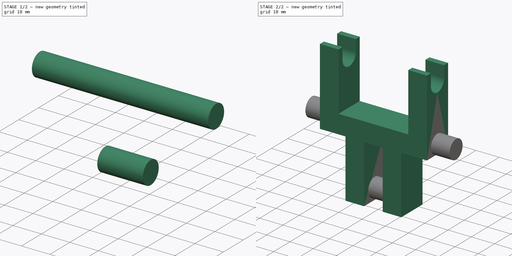
[diagram: build sequence overview — one tinted view per stage of 2, left to right]
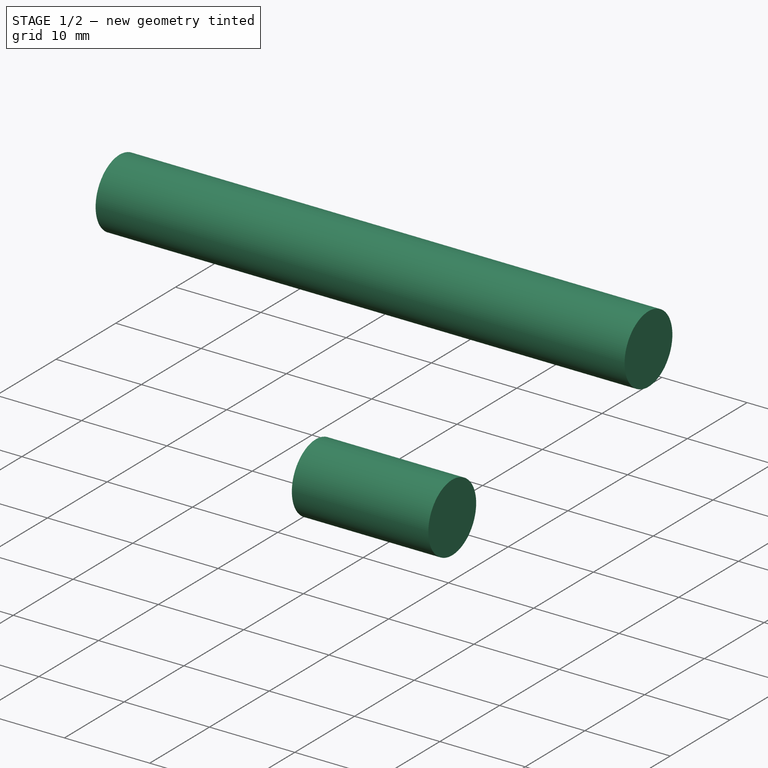
[diagram: stage 1 of 2 — iso view after this stage's code; geometry added in this stage tinted green]
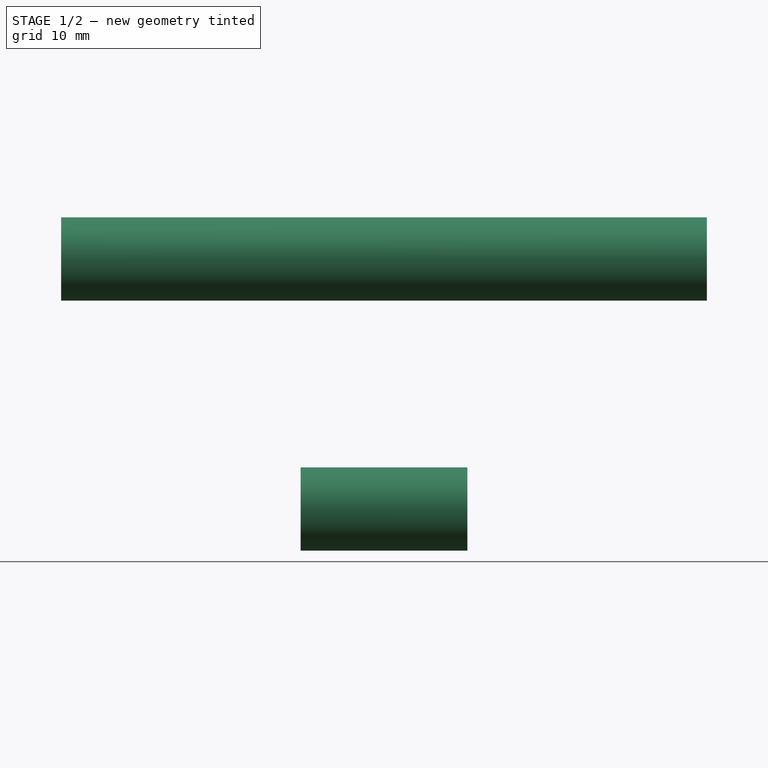
[diagram: stage 1 of 2 — front view after this stage's code; geometry added in this stage tinted green]
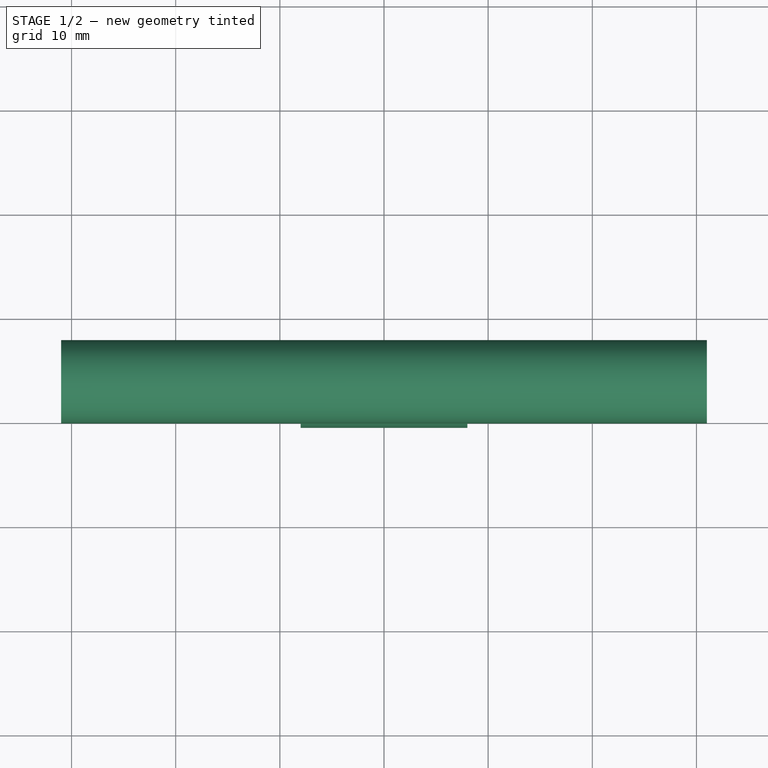
[diagram: stage 1 of 2 — top view after this stage's code; geometry added in this stage tinted green]
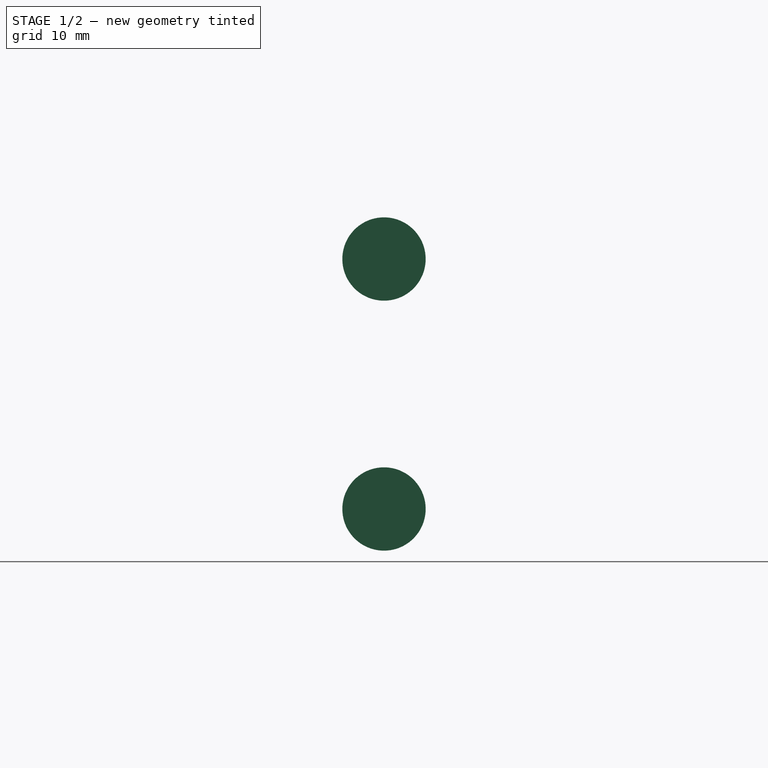
[diagram: stage 1 of 2 — right view after this stage's code; geometry added in this stage tinted green]
FCSTD DOCUMENT  (FreeCAD 0.15R4671 (Git))
Label: Push Lever
License: All rights reserved
LicenseURL: http://en.wikipedia.org/wiki/All_rights_reserved
objects: Sketcher::SketchObject×2, Part::Cylinder×2, PartDesign::Pad×1, PartDesign::Pocket×1
note: 8 computed .brp shape members not serialized (recipe doc carries the construction recipe); baked Part::Feature solids carry a one-line shape summary decoded from their .brp

FEATURE [Part::Cylinder] Cylinder
  Angle = 360
  Height = 16
  Placement = pos=(-8,-6.5,-24) rot=(0,1,0;1.5708rad)
  Radius = 4
FEATURE [Part::Cylinder] Cylinder001
  Angle = 360
  Height = 62
  Placement = pos=(-31,-6.5,0) rot=(0,1,0;1.5708rad)
  Radius = 4
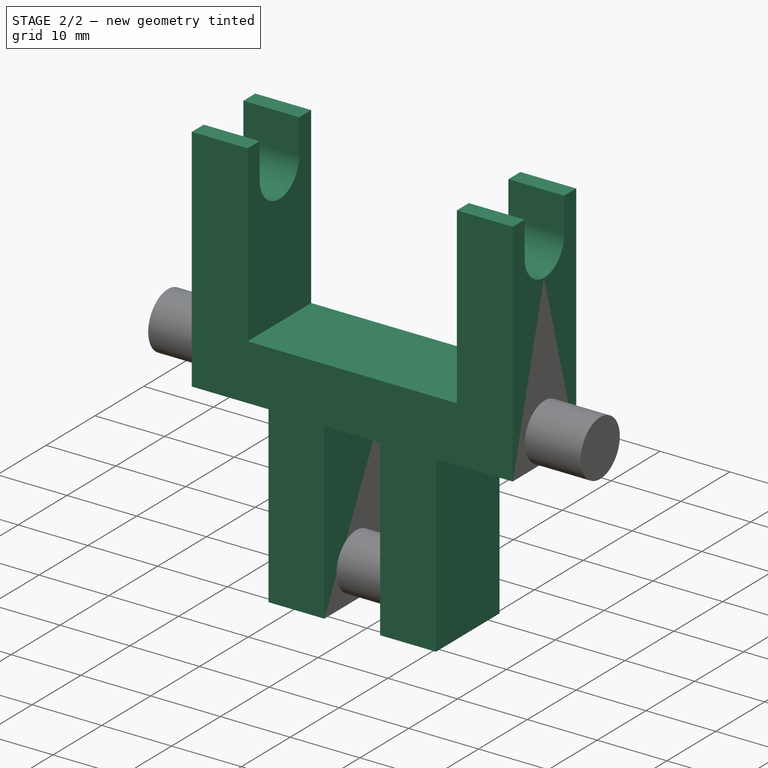
[diagram: stage 2 of 2 — iso view after this stage's code; geometry added in this stage tinted green]
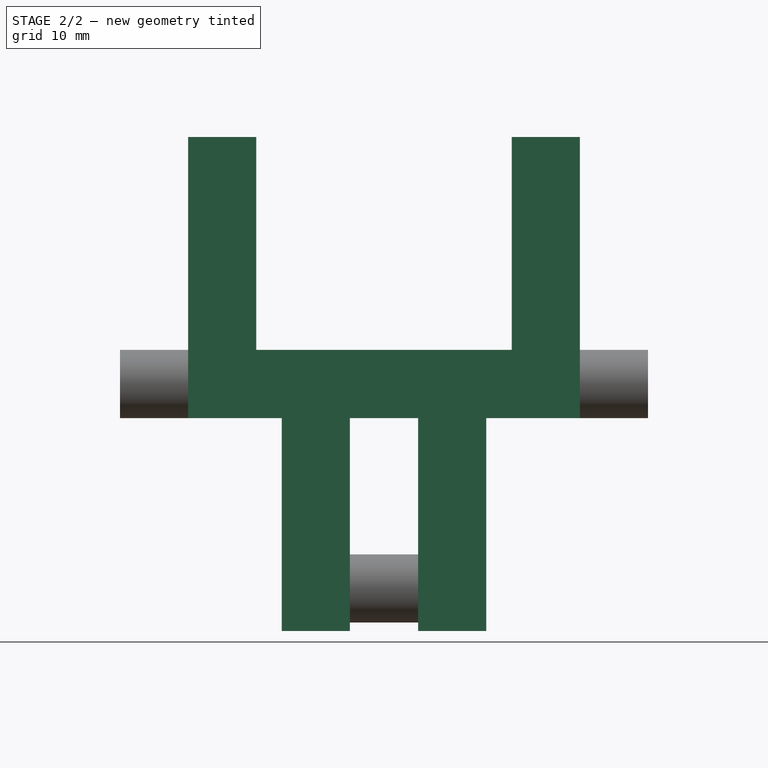
[diagram: stage 2 of 2 — front view after this stage's code; geometry added in this stage tinted green]
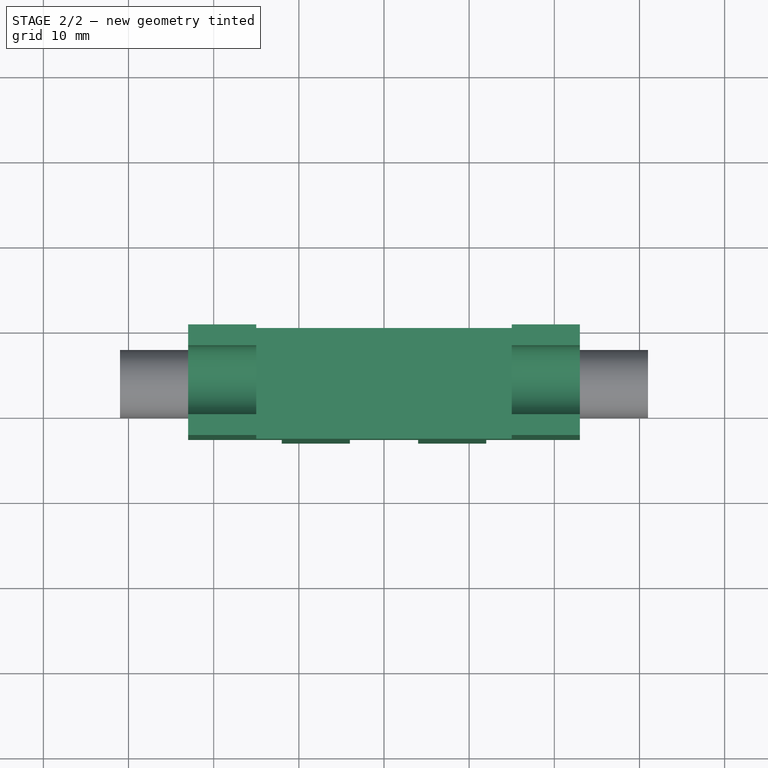
[diagram: stage 2 of 2 — top view after this stage's code; geometry added in this stage tinted green]
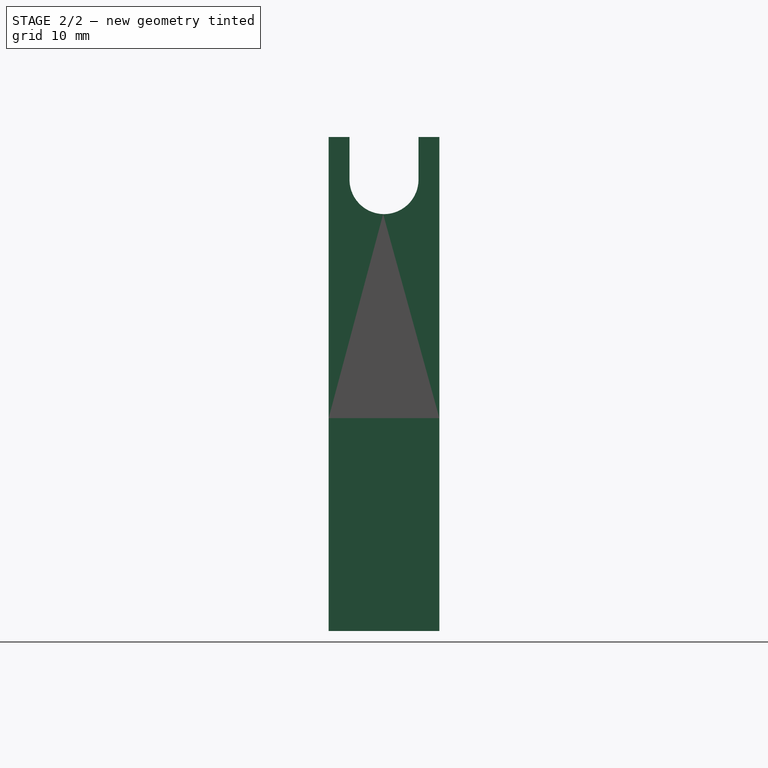
[diagram: stage 2 of 2 — right view after this stage's code; geometry added in this stage tinted green]
FEATURE [Sketcher::SketchObject] Sketch
  Placement = pos=(0,0,0) rot=(1,0,0;1.5708rad)
  sketch-geometry (18):
    g0: LineSegment StartX=-15 StartY=29 StartZ=0 EndX=-15 EndY=4 EndZ=0
    g1: LineSegment StartX=-15 StartY=4 StartZ=0 EndX=15 EndY=4 EndZ=0
    g2: LineSegment StartX=15 StartY=4 StartZ=0 EndX=15 EndY=29 EndZ=0
    g3: LineSegment StartX=15 StartY=29 StartZ=0 EndX=23 EndY=29 EndZ=0
    g4: LineSegment StartX=23 StartY=29 StartZ=0 EndX=23 EndY=-4 EndZ=0
    g5: LineSegment StartX=23 StartY=-4 StartZ=0 EndX=12 EndY=-4 EndZ=0
    g6: LineSegment StartX=12 StartY=-4 StartZ=0 EndX=12 EndY=-29 EndZ=0
    g7: LineSegment StartX=-12 StartY=-29 StartZ=0 EndX=-12 EndY=-4 EndZ=0
    g8: LineSegment StartX=-12 StartY=-4 StartZ=0 EndX=-23 EndY=-4 EndZ=0
    g9: LineSegment StartX=-23 StartY=-4 StartZ=0 EndX=-23 EndY=29 EndZ=0
    g10: LineSegment StartX=-23 StartY=29 StartZ=0 EndX=-15 EndY=29 EndZ=0
    g11: LineSegment StartX=-12 StartY=-29 StartZ=0 EndX=-4 EndY=-29 EndZ=0
    g12: LineSegment StartX=-4 StartY=-29 StartZ=0 EndX=-4 EndY=-4 EndZ=0
    g13: LineSegment StartX=-4 StartY=-4 StartZ=0 EndX=4 EndY=-4 EndZ=0
    g14: LineSegment StartX=4 StartY=-4 StartZ=0 EndX=4 EndY=-29 EndZ=0
    g15: LineSegment StartX=4 StartY=-29 StartZ=0 EndX=12 EndY=-29 EndZ=0
    g16: GeomPoint [constr] X=0 Y=4 Z=0
    g17: GeomPoint [constr] X=0 Y=-4 Z=0
  constraints (52):
    c: Vertical(g0)
    c: Coincident(g0,g1)
    c: Horizontal(g1)
    c: Coincident(g1,g2)
    c: Vertical(g2)
    c: Coincident(g2,g3)
    c: Horizontal(g3)
    c: Coincident(g3,g4)
    c: Vertical(g4)
    c: Coincident(g4,g5)
    c: Coincident(g5,g6)
    c: Vertical(g6)
    c: Vertical(g7)
    c: Coincident(g7,g8)
    c: Coincident(g8,g9)
    c: Vertical(g9)
    c: Coincident(g9,g10)
    c: Coincident(g10,g0)
    c: Horizontal(g10)
    c: Symmetric(g0,g1,g-2)
    c: DistanceX(g1) = 30
    c: DistanceY(g2) = 25
    c: Equal(g0,g2)
    c: Equal(g10,g3)
    c: DistanceX(g3) = 8
    c: Equal(g4,g9)
    c: Symmetric(g7,g6,g-2)
    c: Equal(g7,g6)
    c: Coincident(g7,g11)
    c: Horizontal(g11)
    c: Coincident(g11,g12)
    c: Vertical(g12)
    c: Coincident(g12,g13)
    c: Horizontal(g13)
    c: Coincident(g13,g14)
    c: Vertical(g14)
    c: Coincident(g14,g15)
    c: Coincident(g15,g6)
    c: Horizontal(g15)
    c: Equal(g11,g15)
    c: Equal(g12,g14)
    c: Equal(g11,g10)
    c: DistanceX(g11,g14) = 8
    c: Horizontal(g8)
    c: DistanceY(g5,g1) = 8
    c: Equal(g14,g6)
    c: DistanceY(g14) = -25
    c: PointOnObject(g16,g1)
    c: PointOnObject(g17,g13)
    c: PointOnObject(g17,g-2)
    c: PointOnObject(g16,g-2)
    c: Symmetric(g17,g16,g-1)
FEATURE [PartDesign::Pad] Pad
  Length = 13
  Length2 = 100
  Placement = pos=(0,0,0) rot=(1,0,0;1.5708rad)
  Sketch = -> Sketch
  Type = 0
FEATURE [Sketcher::SketchObject] Sketch001
  ExternalGeometry = -> [Pad]
  Placement = pos=(-23,0,0) rot=(0.707107,0,-0.707107;3.14159rad)
  Support = -> Pad [Face3]
  sketch-geometry (6):
    g0: LineSegment StartX=-29 StartY=10.55 StartZ=0 EndX=-24 EndY=10.55 EndZ=0
    g1: LineSegment StartX=-24 StartY=2.45 StartZ=0 EndX=-29 EndY=2.45 EndZ=0
    g2: LineSegment StartX=-29 StartY=2.45 StartZ=0 EndX=-29 EndY=10.55 EndZ=0
    g3: LineSegment [constr] StartX=-24 StartY=13 StartZ=0 EndX=-24 EndY=6.5 EndZ=0
    g4: LineSegment [constr] StartX=-24 StartY=6.5 StartZ=0 EndX=-24 EndY=0 EndZ=0
    g5: ArcOfCircle CenterX=-24 CenterY=6.5 CenterZ=0 NormalX=0 NormalY=0 NormalZ=1 Radius=4.05 StartAngle=4.71239 EndAngle=7.85398
  constraints (19):
    c: Coincident(g1,g2)
    c: Coincident(g2,g0)
    c: Horizontal(g0)
    c: Horizontal(g1)
    c: Vertical(g2)
    c: PointOnObject(g0,g-3)
    c: PointOnObject(g3,g-4)
    c: Vertical(g3)
    c: PointOnObject(g4,g-5)
    c: Vertical(g4)
    c: Coincident(g3,g4)
    c: Equal(g4,g3)
    c: PointOnObject(g0,g3)
    c: PointOnObject(g1,g4)
    c: Coincident(g5,g3)
    c: Coincident(g5,g0)
    c: Coincident(g5,g1)
    c: DistanceY(g1,g0) = 8.1
    c: DistanceX(g1) = -5
FEATURE [PartDesign::Pocket] Pocket
  Length = 5
  Placement = pos=(0,0,0) rot=(1,0,0;1.5708rad)
  Sketch = -> Sketch001
  Type = 1
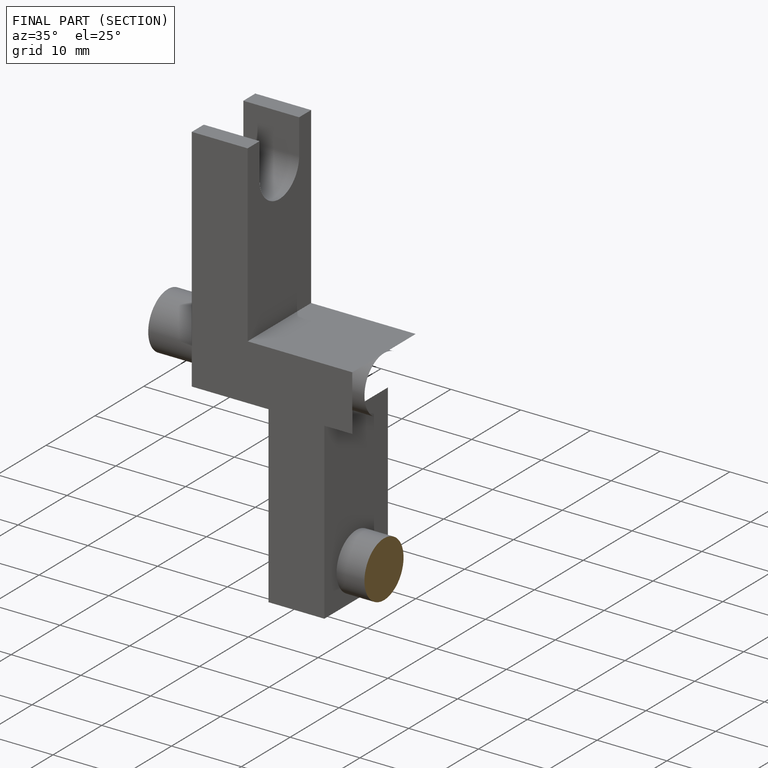
[diagram: finished part — half-section view (interior)]
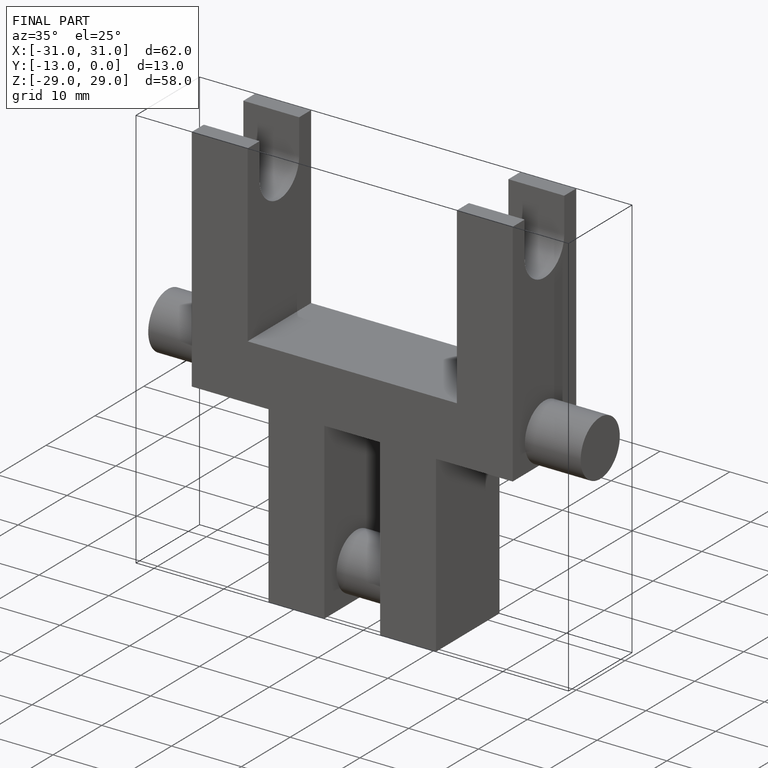
[diagram: finished part — iso view with bounding-box wireframe]
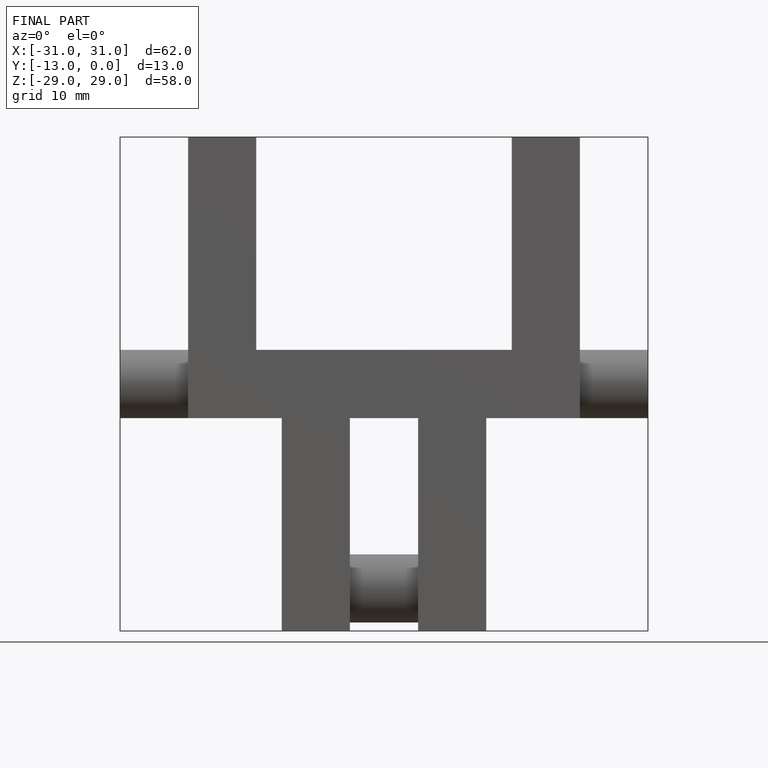
[diagram: finished part — front view with bounding-box wireframe]
